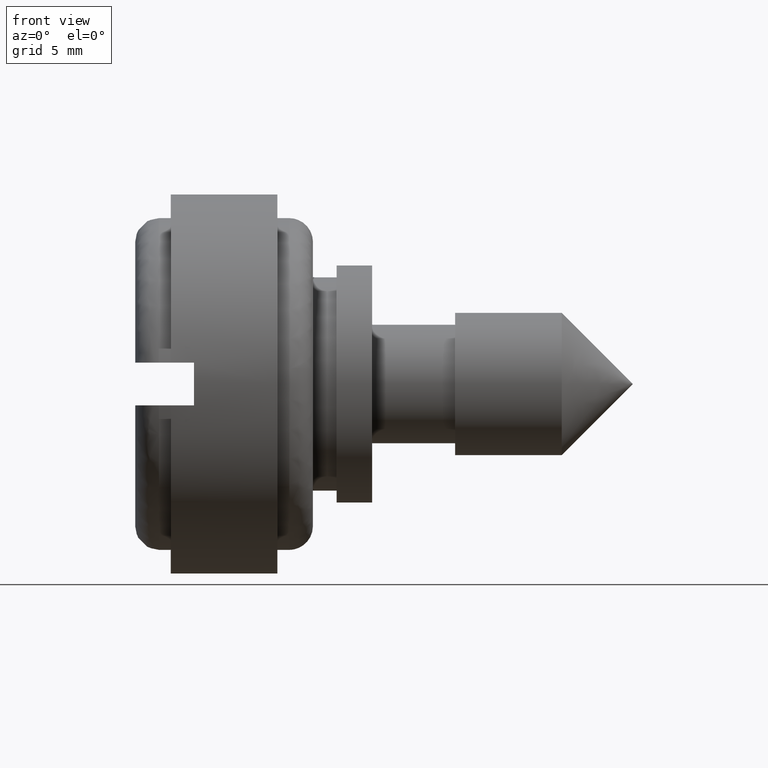
[diagram: clean part render]
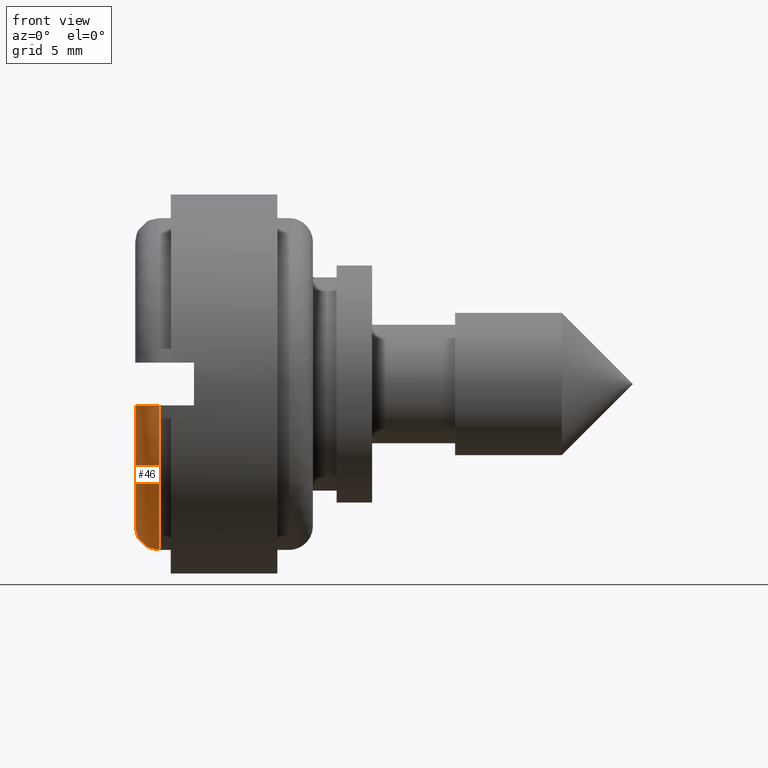
[diagram: same view with one face highlighted and labeled with its STEP entity id]
A machine part, front view. The second image highlights one B-rep face of the part: STEP entity #46.
In plain terms, the highlighted face is a freeform B-spline surface patch.
Its self-contained STEP definition (entity closure, byte-faithful):
#46=ADVANCED_FACE('',(#133),#132,.T.);
#132=( BOUNDED_SURFACE() B_SPLINE_SURFACE( 2,2,((#448,#449,#450,#451,#452),(#453,#454,#455,#456,#457),(#458,#459,#460,#461,#462),(#463,#464,#465,#466,#467),(#468,#469,#470,#471,#472)), .UNSPECIFIED.,.F.,.F.,.F.) B_SPLINE_SURFACE_WITH_KNOTS((3,2,3),(3,2,3),(-5.83214610494E-04,1.04700314633E+00,1.57079774053E+00),(3.99163331399E-02,1.47852156466E+00,2.91711105724E+00), .UNSPECIFIED. ) GEOMETRIC_REPRESENTATION_ITEM() RATIONAL_B_SPLINE_SURFACE(((9.86286046063E-01,7.46014036886E-01,1.00000000000E+00,7.46016815599E-01,9.86280788769E-01),(8.54052885743E-01,6.45994580934E-01,8.65928184985E-01,6.45996987100E-01,8.54048333304E-01),(9.86286046063E-01,7.46014036886E-01,1.00000000000E+00,7.46016815599E-01,9.86280788769E-01),(9.20169287452E-01,6.96004173932E-01,9.32963911560E-01,6.96006766371E-01,9.20164382586E-01),(9.20169465903E-01,6.96004308910E-01,9.32964092493E-01,6.96006901350E-01,9.20164561037E-01))) REPRESENTATION_ITEM('') SURFACE() );
#133=FACE_OUTER_BOUND('',#473,.T.);
#448=CARTESIAN_POINT('',(1.00058321458E+00,-6.94192032664E+00,-8.99855431487E-01));
#449=CARTESIAN_POINT('',(1.00058321458E+00,-6.15118119296E+00,-6.99999982483E+00));
#450=CARTESIAN_POINT('',(1.00058321458E+00,-5.80862402622E-09,-6.99999982993E+00));
#451=CARTESIAN_POINT('',(1.00058321458E+00,6.15109097359E+00,-6.99999983504E+00));
#452=CARTESIAN_POINT('',(1.00058321458E+00,6.94190723734E+00,-8.99956402912E-01));
#453=CARTESIAN_POINT('',(4.22973808028E-01,-6.94225440189E+00,-8.99898736425E-01));
#454=CARTESIAN_POINT('',(4.22973808028E-01,-6.15147721441E+00,-7.00033669511E+00));
#455=CARTESIAN_POINT('',(4.22973808028E-01,-5.80890346935E-09,-7.00033670021E+00));
#456=CARTESIAN_POINT('',(4.22973808028E-01,6.15138699070E+00,-7.00033670532E+00));
#457=CARTESIAN_POINT('',(4.22973808028E-01,6.94224131196E+00,-8.99999712709E-01));
#458=CARTESIAN_POINT('',(1.34071815015E-01,-6.44623598465E+00,-8.35601705362E-01));
#459=CARTESIAN_POINT('',(1.34071815015E-01,-5.71195918252E+00,-6.50016834537E+00));
#460=CARTESIAN_POINT('',(1.34071815015E-01,-5.39386202369E-09,-6.50016835011E+00));
#461=CARTESIAN_POINT('',(1.34071815015E-01,5.71187540522E+00,-6.50016835485E+00));
#462=CARTESIAN_POINT('',(1.34071815015E-01,6.44622382998E+00,-8.35695466973E-01));
#463=CARTESIAN_POINT('',(-3.87865753255E-07,-6.21604621968E+00,-8.05763058341E-01));
#464=CARTESIAN_POINT('',(-3.87865753259E-07,-5.50798983594E+00,-6.26805270033E+00));
#465=CARTESIAN_POINT('',(-3.87865753285E-07,-5.20125164976E-09,-6.26805270490E+00));
#466=CARTESIAN_POINT('',(-3.87865753307E-07,5.50790905026E+00,-6.26805270947E+00));
#467=CARTESIAN_POINT('',(-3.87865753300E-07,6.21603449905E+00,-8.05853471802E-01));
#468=CARTESIAN_POINT('',(1.04708673978E-12,-5.95021613244E+00,-7.71304488291E-01));
#469=CARTESIAN_POINT('',(1.04708411267E-12,-5.27243987912E+00,-5.99999854865E+00));
#470=CARTESIAN_POINT('',(1.04705707881E-12,-4.97881943684E-09,-5.99999855303E+00));
#471=CARTESIAN_POINT('',(1.04703561069E-12,5.27236254825E+00,-5.99999855740E+00));
#472=CARTESIAN_POINT('',(1.04704192351E-12,5.95020491304E+00,-7.71391035207E-01));
#473=EDGE_LOOP('',(#692,#693,#694,#695));
#692=ORIENTED_EDGE('',*,*,#827,.T.);
#693=ORIENTED_EDGE('',*,*,#804,.T.);
#694=ORIENTED_EDGE('',*,*,#828,.F.);
#695=ORIENTED_EDGE('',*,*,#802,.F.);
#802=EDGE_CURVE('',#874,#875,#876,.T.);
#804=EDGE_CURVE('',#889,#882,#890,.T.);
#827=EDGE_CURVE('',#874,#889,#1044,.T.);
#828=EDGE_CURVE('',#875,#882,#1050,.T.);
#874=VERTEX_POINT('',#1353);
#875=VERTEX_POINT('',#1354);
#876=(BOUNDED_CURVE() B_SPLINE_CURVE(3,(#1355,#1356,#1357,#1358,#1359,#1360,#1361,#1362,#1363,#1364),.UNSPECIFIED.,.F.,.F.) B_SPLINE_CURVE_WITH_KNOTS((4,2,2,2,4),(3.73531060433E-03,4.12826400123E-03,4.52121739812E-03,4.91417079502E-03,5.30712419191E-03),.UNSPECIFIED.) CURVE() GEOMETRIC_REPRESENTATION_ITEM() RATIONAL_B_SPLINE_CURVE((1.00000000000E+00,1.00000000000E+00,1.00000000000E+00,1.00000000000E+00,1.00000000000E+00,1.00000000000E+00,1.00000000000E+00,1.00000000000E+00,1.00000000000E+00,1.00000000000E+00)) REPRESENTATION_ITEM('') );
#882=VERTEX_POINT('',#1365);
#889=VERTEX_POINT('',#1369);
#890=(BOUNDED_CURVE() B_SPLINE_CURVE(3,(#1370,#1371,#1372,#1373,#1374,#1375,#1376,#1377),.UNSPECIFIED.,.F.,.F.) B_SPLINE_CURVE_WITH_KNOTS((4,2,2,4),(5.41497200979E-03,5.80734894007E-03,6.19972587035E-03,6.98447973092E-03),.UNSPECIFIED.) CURVE() GEOMETRIC_REPRESENTATION_ITEM() RATIONAL_B_SPLINE_CURVE((1.00000000000E+00,1.00000000000E+00,1.00000000000E+00,1.00000000000E+00,1.00000000000E+00,1.00000000000E+00,1.00000000000E+00,1.00000000000E+00)) REPRESENTATION_ITEM('') );
#1044=CIRCLE('',#1482,7.00000000000E+00);
#1050=CIRCLE('',#1486,6.00000000000E+00);
#1353=CARTESIAN_POINT('',(1.00000000000E+00,6.94190175672E+00,-9.00000000000E-01));
#1354=CARTESIAN_POINT('',(8.95334154039E-13,5.93211597999E+00,-9.00000000000E-01));
#1355=CARTESIAN_POINT('',(1.00000000000E+00,6.94190175672E+00,-9.00000000000E-01));
#1356=CARTESIAN_POINT('',(8.67769289133E-01,6.94190175672E+00,-9.00000000000E-01));
#1357=CARTESIAN_POINT('',(7.36588925998E-01,6.91524890170E+00,-9.00000000000E-01));
#1358=CARTESIAN_POINT('',(4.94344650358E-01,6.81347545250E+00,-9.00000000000E-01));
#1359=CARTESIAN_POINT('',(3.82863304828E-01,6.73775813518E+00,-9.00000000000E-01));
#1360=CARTESIAN_POINT('',(1.98952284730E-01,6.55112104183E+00,-9.00000000000E-01));
#1361=CARTESIAN_POINT('',(1.24821664628E-01,6.43837557180E+00,-9.00000000000E-01));
#1362=CARTESIAN_POINT('',(2.58461195583E-02,6.19560078970E+00,-9.00000000000E-01));
#1363=CARTESIAN_POINT('',(-2.07108025933E-14,6.06364334048E+00,-9.00000000000E-01));
#1364=CARTESIAN_POINT('',(-1.20419214428E-14,5.93211597999E+00,-9.00000000000E-01));
#1365=CARTESIAN_POINT('',(8.95334154039E-13,-5.93211597999E+00,-9.00000000000E-01));
#1369=CARTESIAN_POINT('',(1.00000000000E+00,-6.94190175672E+00,-9.00000000000E-01));
#1370=CARTESIAN_POINT('',(1.00000000000E+00,-6.94190175672E+00,-9.00000000000E-01));
#1371=CARTESIAN_POINT('',(8.67393402766E-01,-6.94190175672E+00,-9.00000000000E-01));
#1372=CARTESIAN_POINT('',(7.37041558290E-01,-6.91541245001E+00,-9.00000000000E-01));
#1373=CARTESIAN_POINT('',(4.94233667549E-01,-6.81345540307E+00,-9.00000000000E-01));
#1374=CARTESIAN_POINT('',(3.83620882912E-01,-6.73851538545E+00,-9.00000000000E-01));
#1375=CARTESIAN_POINT('',(1.05611452372E-01,-6.45641974489E+00,-9.00000000000E-01));
#1376=CARTESIAN_POINT('',(-7.46371551803E-14,-6.19678027991E+00,-9.00000000000E-01));
#1377=CARTESIAN_POINT('',(-3.49075259129E-17,-5.93211597999E+00,-9.00000000000E-01));
#1479=CARTESIAN_POINT('',(1.00000000000E+00,0.00000000000E+00,0.00000000000E+00));
#1480=DIRECTION('',(-1.00000000000E+00,0.00000000000E+00,0.00000000000E+00));
#1481=DIRECTION('',(-0.00000000000E+00,9.91700250960E-01,-1.28571428571E-01));
#1482=AXIS2_PLACEMENT_3D('',#1479,#1480,#1481);
#1483=CARTESIAN_POINT('',(0.00000000000E+00,0.00000000000E+00,0.00000000000E+00));
#1484=DIRECTION('',(-1.00000000000E+00,0.00000000000E+00,0.00000000000E+00));
#1485=DIRECTION('',(-0.00000000000E+00,9.88685996664E-01,-1.50000000000E-01));
#1486=AXIS2_PLACEMENT_3D('',#1483,#1484,#1485);